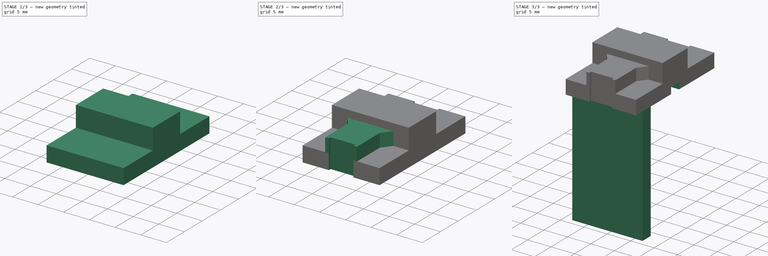
[diagram: build sequence overview — one tinted view per stage of 3, left to right]
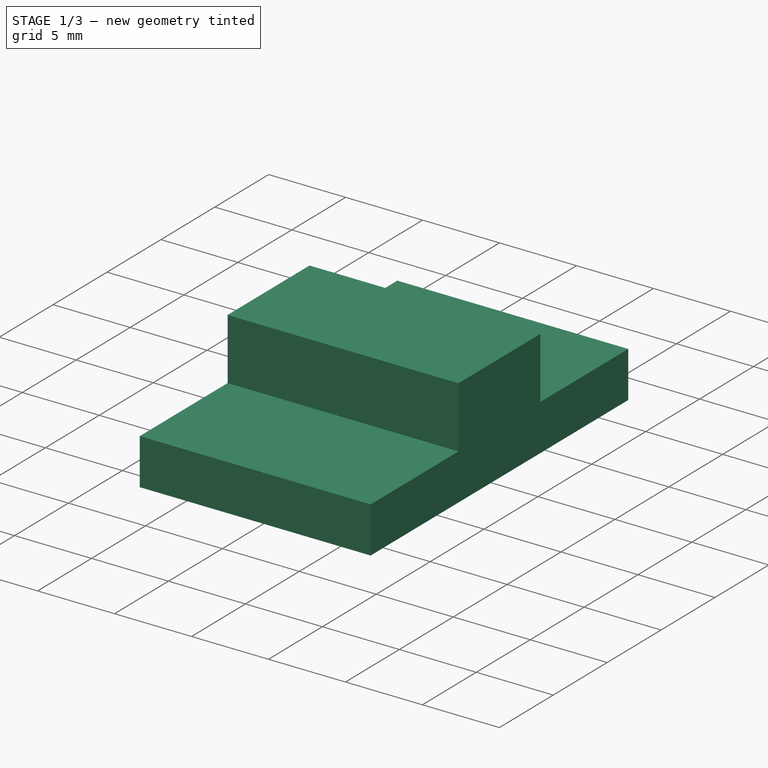
[diagram: stage 1 of 3 — iso view after this stage's code; geometry added in this stage tinted green]
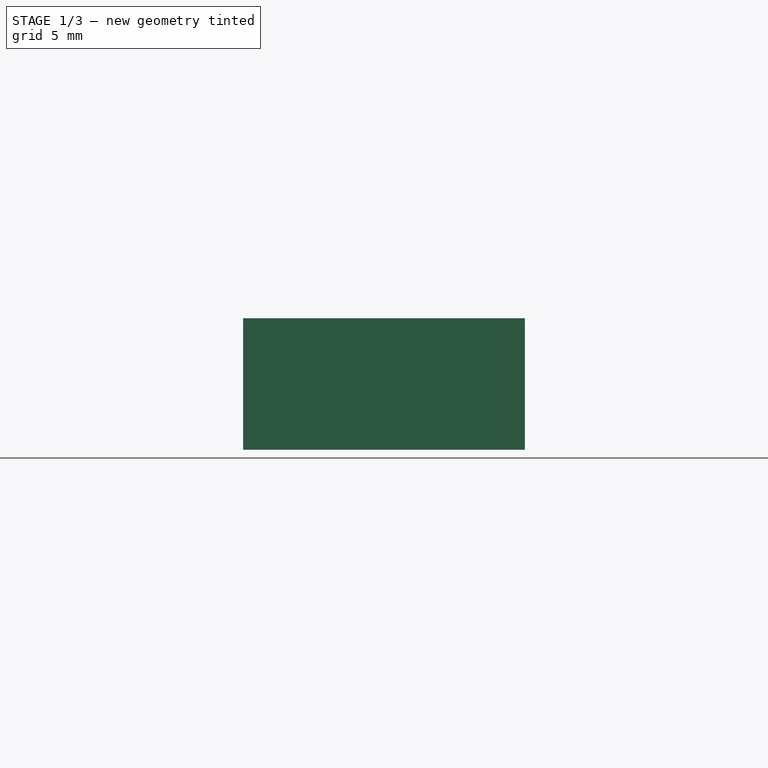
[diagram: stage 1 of 3 — front view after this stage's code; geometry added in this stage tinted green]
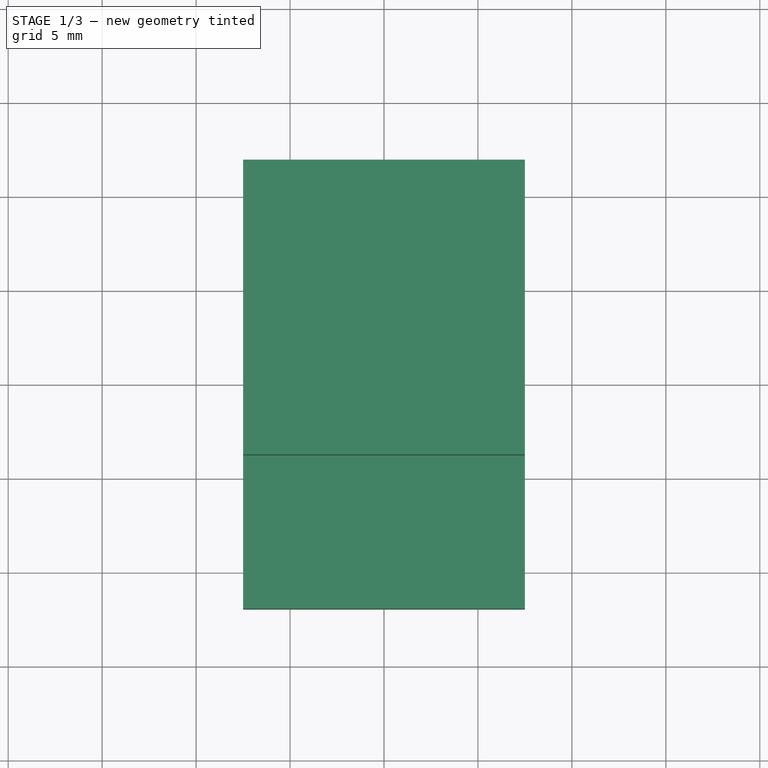
[diagram: stage 1 of 3 — top view after this stage's code; geometry added in this stage tinted green]
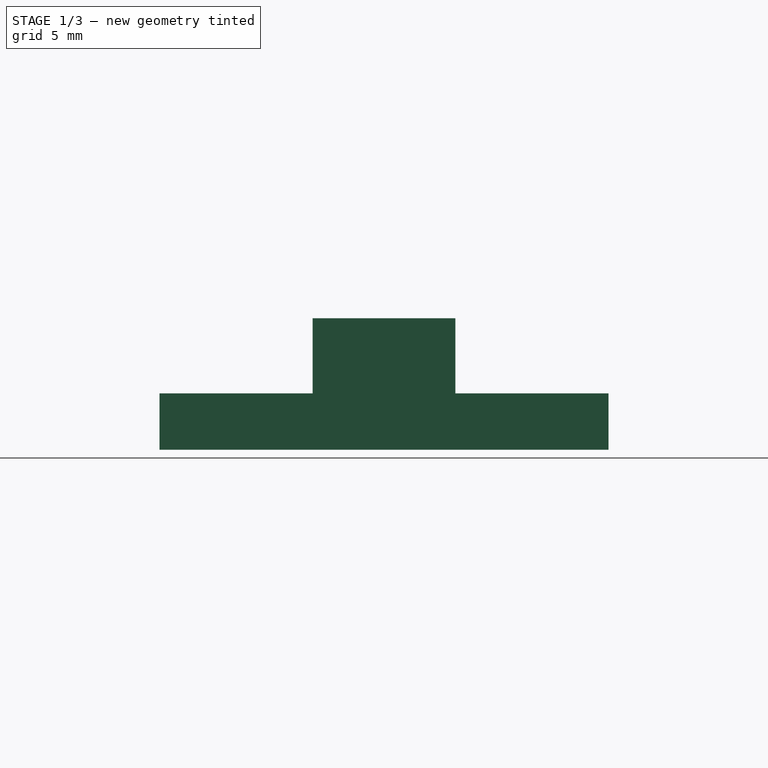
[diagram: stage 1 of 3 — right view after this stage's code; geometry added in this stage tinted green]
FCSTD DOCUMENT  (FreeCAD 0.16R6707 (Git))
Label: calo_pieza_previo
License: All rights reserved
LicenseURL: http://en.wikipedia.org/wiki/All_rights_reserved
objects: Sketcher::SketchObject×6, PartDesign::Pad×4, PartDesign::Pocket×2
note: 18 computed .brp shape members not serialized (recipe doc carries the construction recipe); baked Part::Feature solids carry a one-line shape summary decoded from their .brp

FEATURE [Sketcher::SketchObject] Sketch
  sketch-geometry (4):
    g0: LineSegment StartX=-7.5 StartY=11.95 StartZ=0 EndX=7.5 EndY=11.95 EndZ=0
    g1: LineSegment StartX=7.5 StartY=11.95 StartZ=0 EndX=7.5 EndY=-11.95 EndZ=0
    g2: LineSegment StartX=7.5 StartY=-11.95 StartZ=0 EndX=-7.5 EndY=-11.95 EndZ=0
    g3: LineSegment StartX=-7.5 StartY=-11.95 StartZ=0 EndX=-7.5 EndY=11.95 EndZ=0
  constraints (12):
    c: Coincident(g0,g1)
    c: Coincident(g1,g2)
    c: Coincident(g2,g3)
    c: Coincident(g3,g0)
    c: Horizontal(g0)
    c: Horizontal(g2)
    c: Vertical(g1)
    c: Vertical(g3)
    c: DistanceX(g0,g0) = 15
    c: Symmetric(g0,g0,g-2)
    c: Symmetric(g1,g0,g-1)
    c: DistanceY(g1,g0) = 23.9
FEATURE [PartDesign::Pad] Pad  label="base"
  Length = 3
  Length2 = 100
  Sketch = -> Sketch
  Type = 0
FEATURE [Sketcher::SketchObject] Sketch001
  ExternalGeometry = -> [Pad]
  Placement = pos=(0,0,3) rot=(0,0,1;0rad)
  Support = -> Pad [Face6]
  sketch-geometry (4):
    g0: LineSegment StartX=-7.5 StartY=3.8 StartZ=0 EndX=7.5 EndY=3.8 EndZ=0
    g1: LineSegment StartX=7.5 StartY=3.8 StartZ=0 EndX=7.5 EndY=-3.8 EndZ=0
    g2: LineSegment StartX=7.5 StartY=-3.8 StartZ=0 EndX=-7.5 EndY=-3.8 EndZ=0
    g3: LineSegment StartX=-7.5 StartY=-3.8 StartZ=0 EndX=-7.5 EndY=3.8 EndZ=0
  constraints (12):
    c: Coincident(g0,g1)
    c: Coincident(g1,g2)
    c: Coincident(g2,g3)
    c: Coincident(g3,g0)
    c: Horizontal(g0)
    c: Horizontal(g2)
    c: Vertical(g1)
    c: Vertical(g3)
    c: Symmetric(g1,g0,g-1)
    c: Symmetric(g0,g0,g-2)
    c: PointOnObject(g0,g-3)
    c: DistanceY(g3,g3) = 7.6
FEATURE [PartDesign::Pad] Pad001
  Length = 4
  Length2 = 100
  Sketch = -> Sketch001
  Type = 0
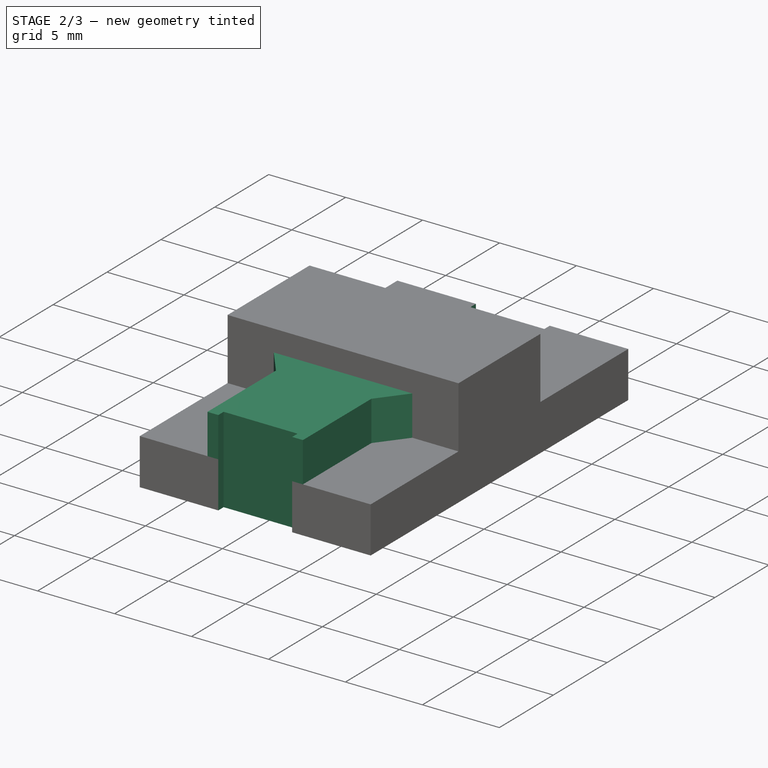
[diagram: stage 2 of 3 — iso view after this stage's code; geometry added in this stage tinted green]
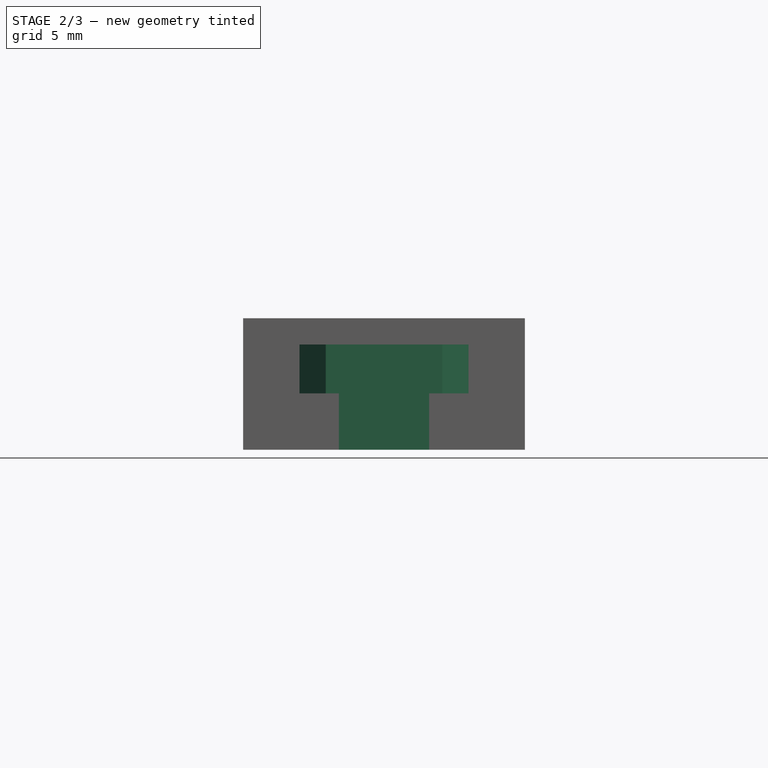
[diagram: stage 2 of 3 — front view after this stage's code; geometry added in this stage tinted green]
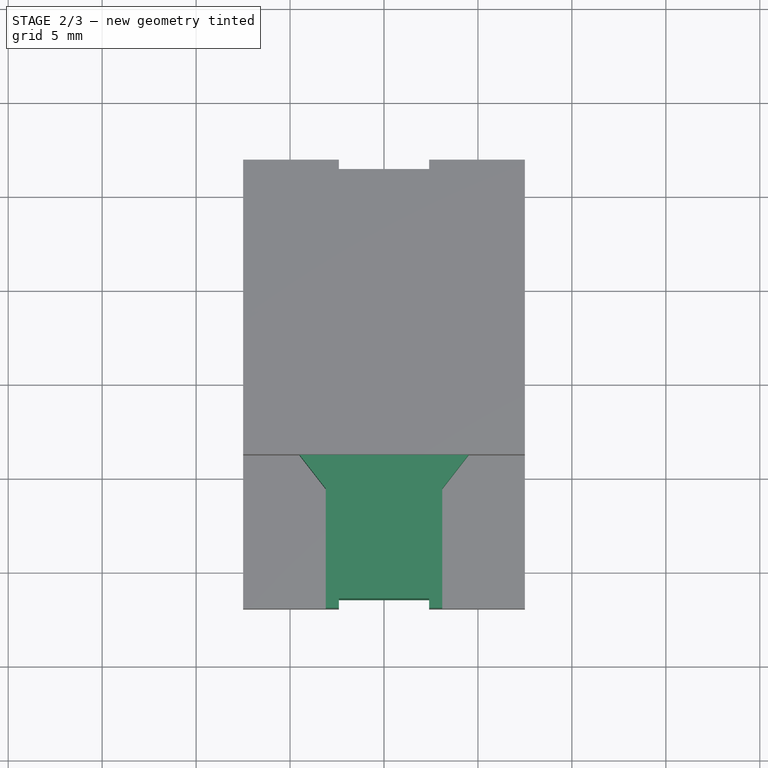
[diagram: stage 2 of 3 — top view after this stage's code; geometry added in this stage tinted green]
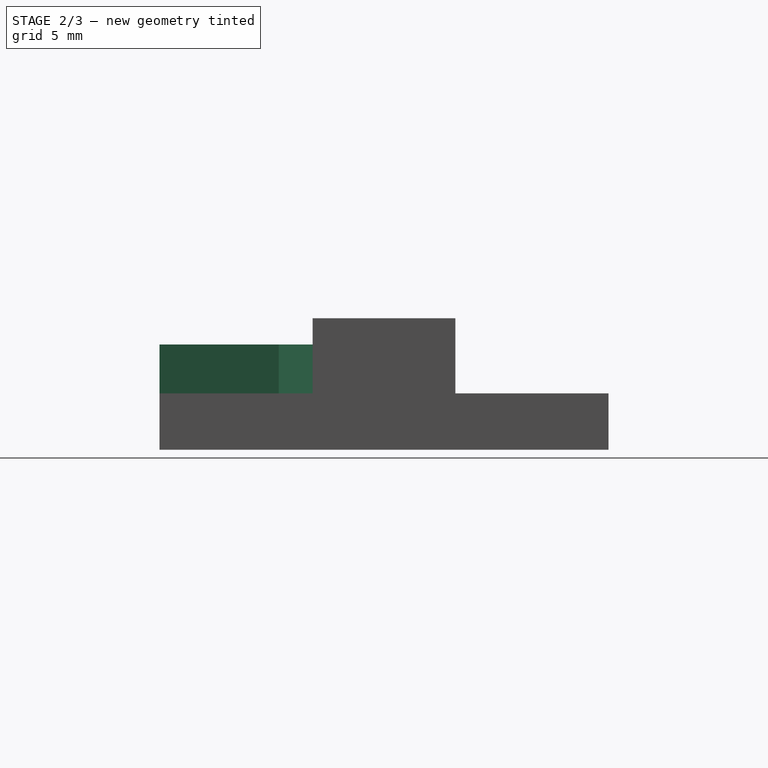
[diagram: stage 2 of 3 — right view after this stage's code; geometry added in this stage tinted green]
FEATURE [Sketcher::SketchObject] Sketch002
  ExternalGeometry = -> [Pad001]
  Placement = pos=(0,0,3) rot=(0,0,1;0rad)
  Support = -> Pad001 [Face5]
  sketch-geometry (6):
    g0: LineSegment StartX=-3.1 StartY=-11.95 StartZ=0 EndX=3.1 EndY=-11.95 EndZ=0
    g1: LineSegment StartX=3.1 StartY=-11.95 StartZ=0 EndX=3.1 EndY=-5.6 EndZ=0
    g2: LineSegment StartX=3.1 StartY=-5.6 StartZ=0 EndX=4.5 EndY=-3.8 EndZ=0
    g3: LineSegment StartX=4.5 StartY=-3.8 StartZ=0 EndX=-4.5 EndY=-3.8 EndZ=0
    g4: LineSegment StartX=-4.5 StartY=-3.8 StartZ=0 EndX=-3.1 EndY=-5.6 EndZ=0
    g5: LineSegment StartX=-3.1 StartY=-5.6 StartZ=0 EndX=-3.1 EndY=-11.95 EndZ=0
  constraints (18):
    c: Horizontal(g0)
    c: Coincident(g0,g1)
    c: Vertical(g1)
    c: Coincident(g1,g2)
    c: Coincident(g2,g3)
    c: Horizontal(g3)
    c: Coincident(g3,g4)
    c: Coincident(g4,g5)
    c: Coincident(g5,g0)
    c: Vertical(g5)
    c: Symmetric(g0,g0,g-2)
    c: Symmetric(g3,g2,g-2)
    c: Symmetric(g4,g1,g-2)
    c: DistanceX(g0,g0) = 6.2
    c: DistanceX(g3,g3) = 9
    c: PointOnObject(g3,g-3)
    c: PointOnObject(g0,g-4)
    c: Distance(g1,g-3) = 1.8
FEATURE [PartDesign::Pad] Pad002
  Length = 2.6
  Length2 = 100
  Sketch = -> Sketch002
  Type = 0
FEATURE [Sketcher::SketchObject] Sketch003
  ExternalGeometry = -> [Pad002]
  Placement = pos=(0,0,0) rot=(1,0,0;3.14159rad)
  Support = -> Pad002 [Face4]
  sketch-geometry (8):
    g0: LineSegment StartX=-2.4 StartY=11.95 StartZ=0 EndX=2.4 EndY=11.95 EndZ=0
    g1: LineSegment StartX=2.4 StartY=11.95 StartZ=0 EndX=2.4 EndY=11.45 EndZ=0
    g2: LineSegment StartX=2.4 StartY=11.45 StartZ=0 EndX=-2.4 EndY=11.45 EndZ=0
    g3: LineSegment StartX=-2.4 StartY=11.45 StartZ=0 EndX=-2.4 EndY=11.95 EndZ=0
    g4: LineSegment StartX=-2.4 StartY=-11.45 StartZ=0 EndX=2.4 EndY=-11.45 EndZ=0
    g5: LineSegment StartX=2.4 StartY=-11.45 StartZ=0 EndX=2.4 EndY=-11.95 EndZ=0
    g6: LineSegment StartX=2.4 StartY=-11.95 StartZ=0 EndX=-2.4 EndY=-11.95 EndZ=0
    g7: LineSegment StartX=-2.4 StartY=-11.95 StartZ=0 EndX=-2.4 EndY=-11.45 EndZ=0
  constraints (23):
    c: Coincident(g0,g1)
    c: Coincident(g1,g2)
    c: Coincident(g2,g3)
    c: Coincident(g3,g0)
    c: Horizontal(g0)
    c: Horizontal(g2)
    c: Vertical(g1)
    c: Vertical(g3)
    c: DistanceX(g2,g2) = 4.8
    c: Coincident(g4,g5)
    c: Coincident(g5,g6)
    c: Coincident(g6,g7)
    c: Coincident(g7,g4)
    c: Horizontal(g4)
    c: Horizontal(g6)
    c: Vertical(g5)
    c: Vertical(g7)
    c: Symmetric(g4,g2,g-1)
    c: Equal(g0,g4)
    c: Equal(g1,g5)
    c: Symmetric(g0,g0,g-2)
    c: PointOnObject(g6,g-3)
    c: DistanceY(g3,g3) = 0.5
FEATURE [PartDesign::Pocket] Pocket
  Length = 20
  Sketch = -> Sketch003
  Type = 0
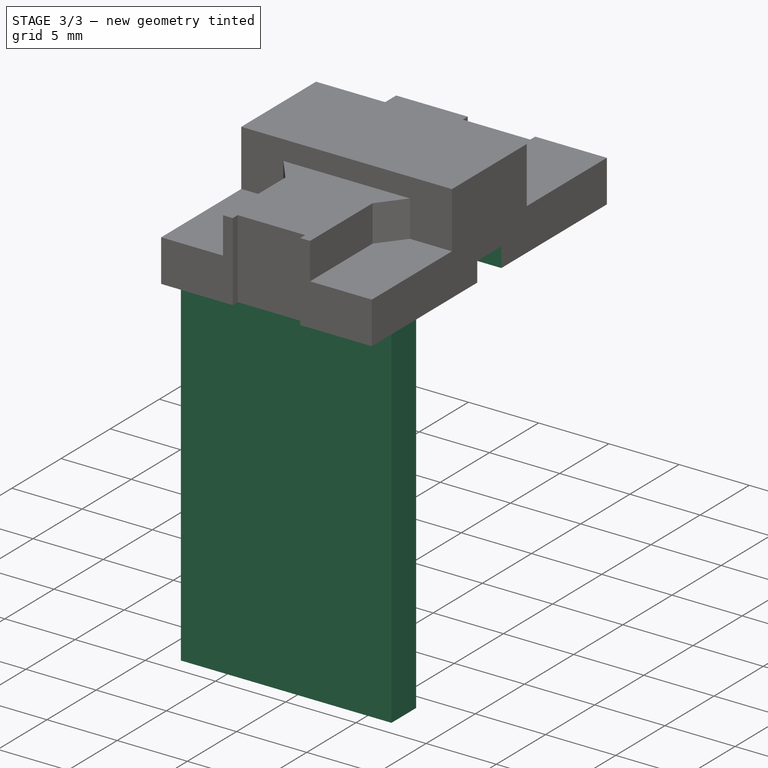
[diagram: stage 3 of 3 — iso view after this stage's code; geometry added in this stage tinted green]
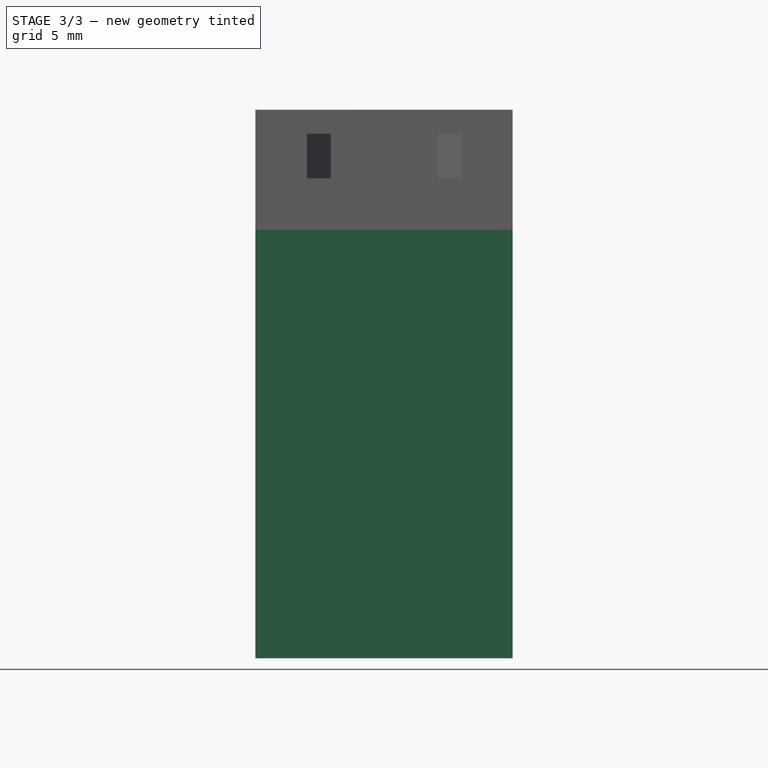
[diagram: stage 3 of 3 — front view after this stage's code; geometry added in this stage tinted green]
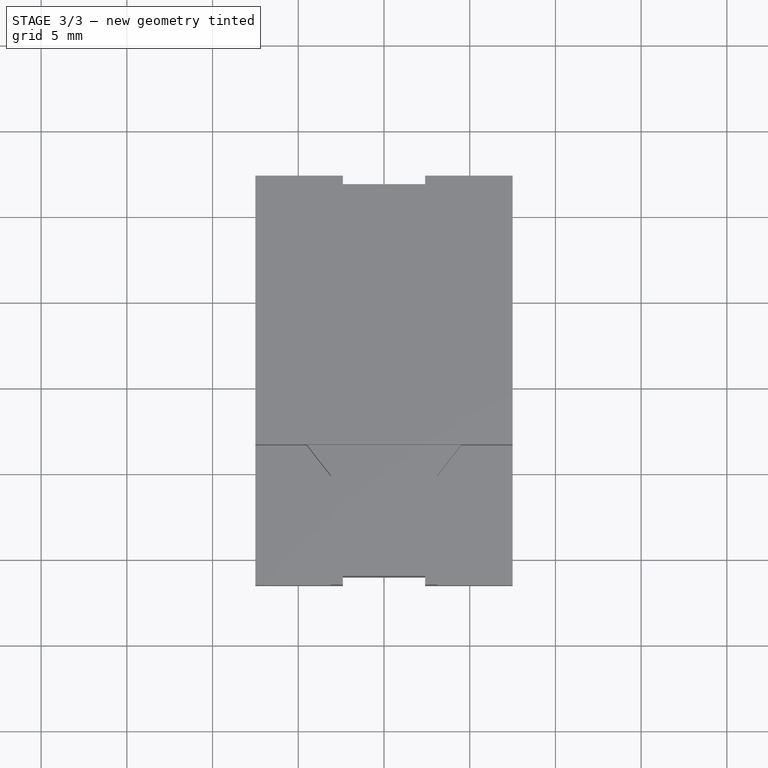
[diagram: stage 3 of 3 — top view after this stage's code; geometry added in this stage tinted green]
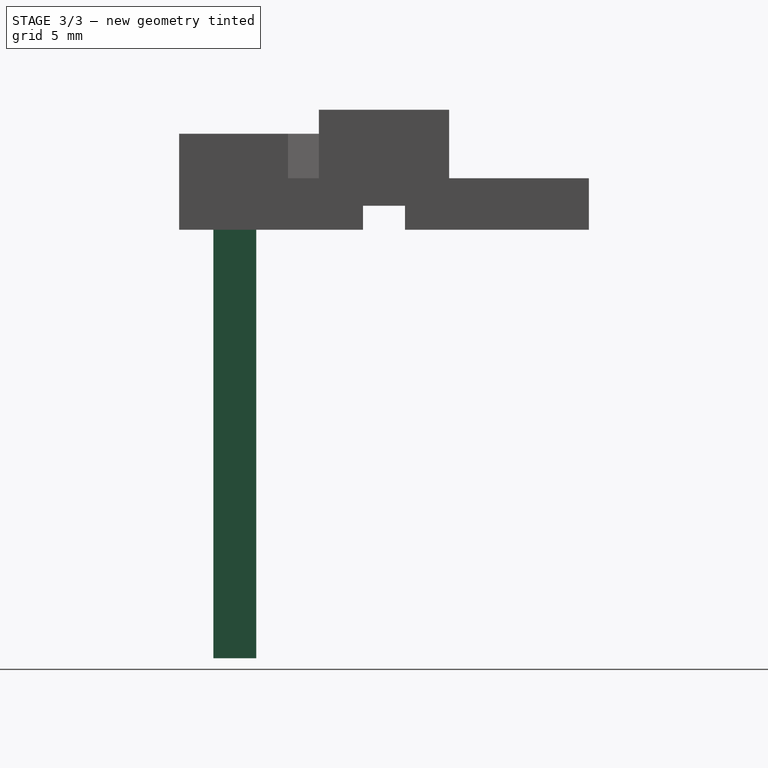
[diagram: stage 3 of 3 — right view after this stage's code; geometry added in this stage tinted green]
FEATURE [Sketcher::SketchObject] Sketch004
  ExternalGeometry = -> [Pocket]
  Placement = pos=(7.5,0,0) rot=(0.57735,0.57735,0.57735;2.0944rad)
  Support = -> Pocket [Face9]
  sketch-geometry (4):
    g0: LineSegment StartX=-1.225 StartY=1.4 StartZ=0 EndX=1.225 EndY=1.4 EndZ=0
    g1: LineSegment StartX=1.225 StartY=1.4 StartZ=0 EndX=1.225 EndY=0 EndZ=0
    g2: LineSegment StartX=1.225 StartY=0 StartZ=0 EndX=-1.225 EndY=0 EndZ=0
    g3: LineSegment StartX=-1.225 StartY=0 StartZ=0 EndX=-1.225 EndY=1.4 EndZ=0
  constraints (12):
    c: Coincident(g0,g1)
    c: Coincident(g1,g2)
    c: Coincident(g2,g3)
    c: Coincident(g3,g0)
    c: Horizontal(g0)
    c: Horizontal(g2)
    c: Vertical(g1)
    c: Vertical(g3)
    c: Symmetric(g0,g0,g-2)
    c: DistanceY(g1,g1) = 1.4
    c: PointOnObject(g1,g-3)
    c: DistanceX(g0,g0) = 2.45
FEATURE [PartDesign::Pocket] Pocket001
  Length = 20
  Sketch = -> Sketch004
  Type = 0
FEATURE [Sketcher::SketchObject] Sketch005
  ExternalGeometry = -> [Pocket001]
  Placement = pos=(0,0,0) rot=(1,0,0;3.14159rad)
  Support = -> Pocket001 [Face2]
  sketch-geometry (4):
    g0: LineSegment StartX=-7.5 StartY=9.95 StartZ=0 EndX=7.5 EndY=9.95 EndZ=0
    g1: LineSegment StartX=7.5 StartY=9.95 StartZ=0 EndX=7.5 EndY=7.45 EndZ=0
    g2: LineSegment StartX=7.5 StartY=7.45 StartZ=0 EndX=-7.5 EndY=7.45 EndZ=0
    g3: LineSegment StartX=-7.5 StartY=7.45 StartZ=0 EndX=-7.5 EndY=9.95 EndZ=0
  constraints (12):
    c: Coincident(g0,g1)
    c: Coincident(g1,g2)
    c: Coincident(g2,g3)
    c: Coincident(g3,g0)
    c: Horizontal(g0)
    c: Horizontal(g2)
    c: Vertical(g1)
    c: Vertical(g3)
    c: PointOnObject(g0,g-3)
    c: Symmetric(g0,g0,g-2)
    c: DistanceY(g1,g1) = 2.5
    c: DistanceY(g0,g-3) = 2
FEATURE [PartDesign::Pad] Pad003
  Length = 25
  Length2 = 100
  Sketch = -> Sketch005
  Type = 0
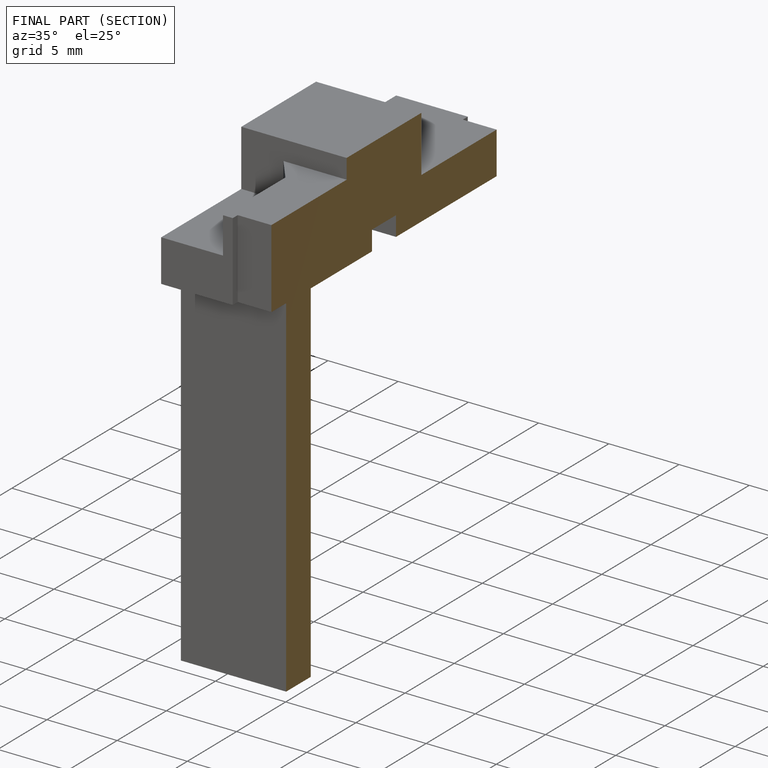
[diagram: finished part — half-section view (interior)]
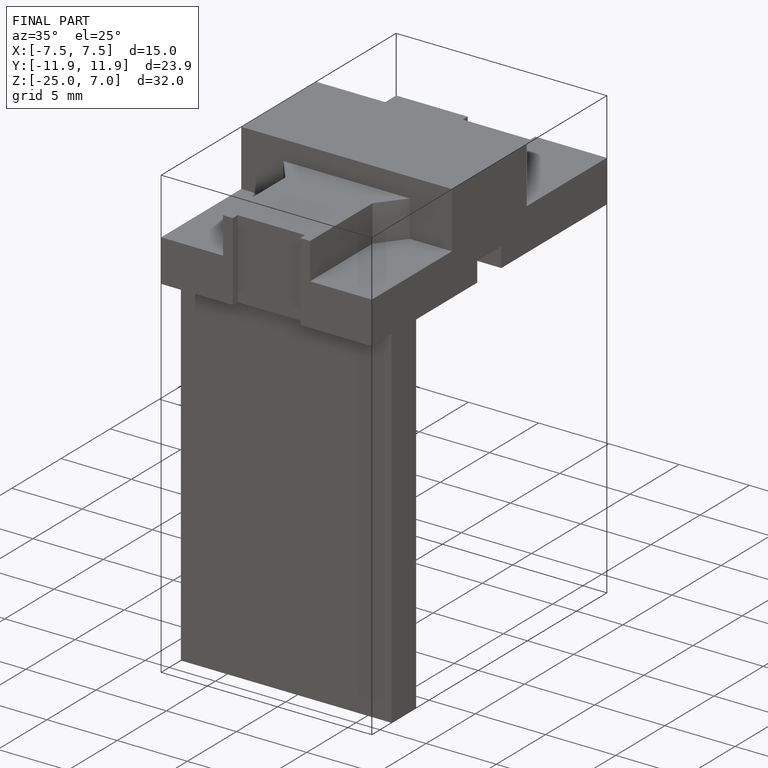
[diagram: finished part — iso view with bounding-box wireframe]
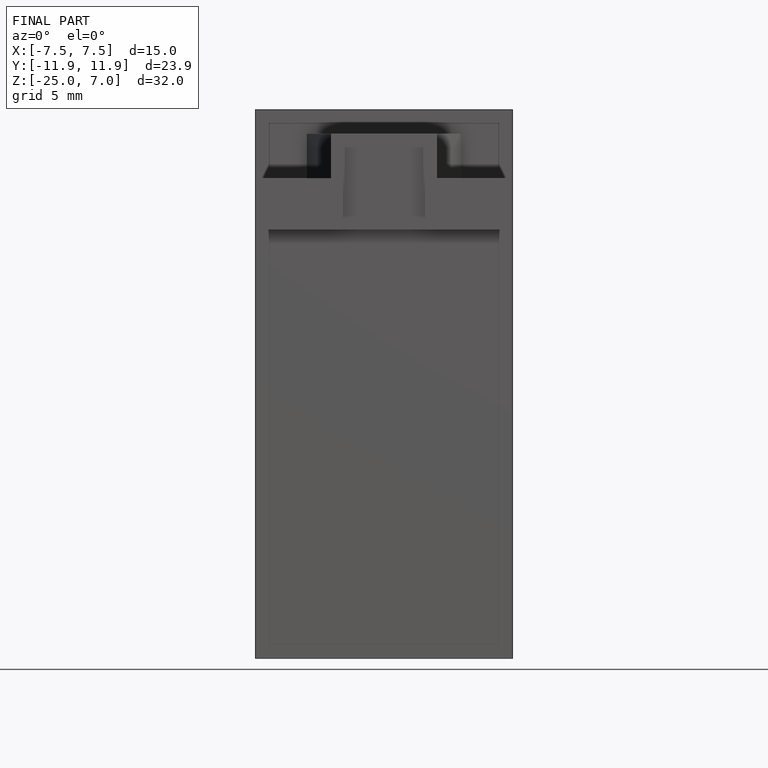
[diagram: finished part — front view with bounding-box wireframe]
